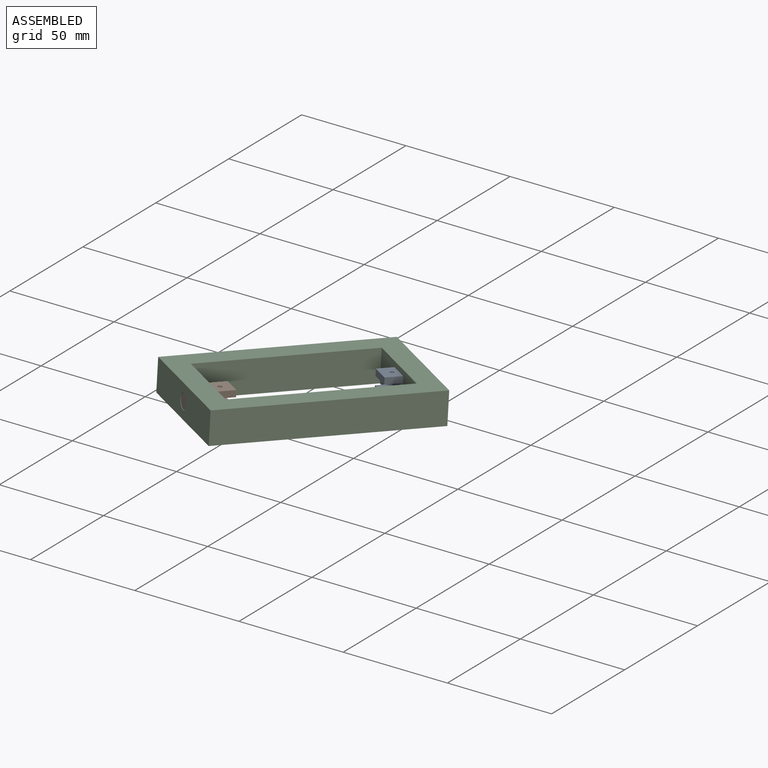
[diagram: assembled view]
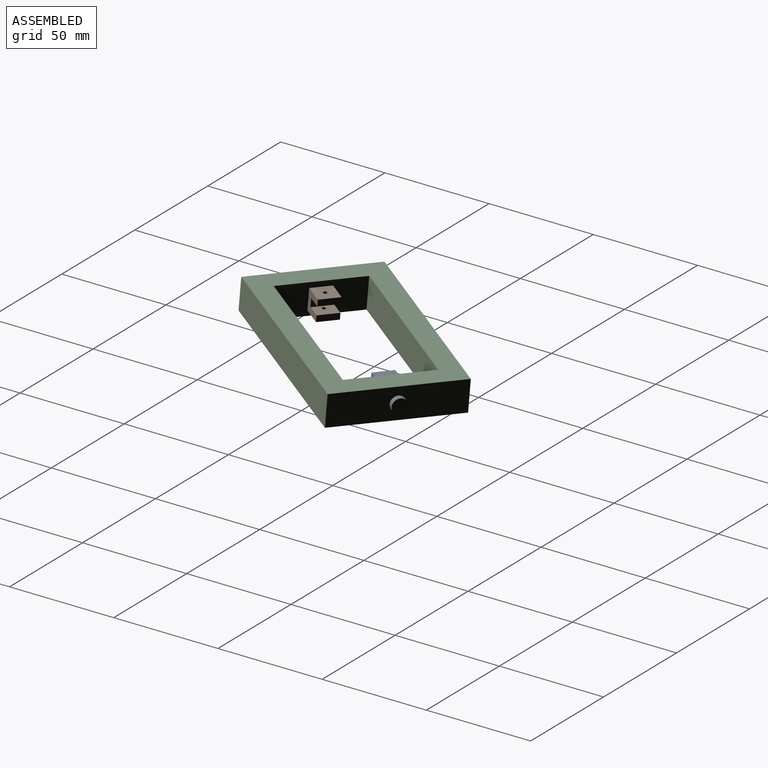
[diagram: assembled view, second angle]
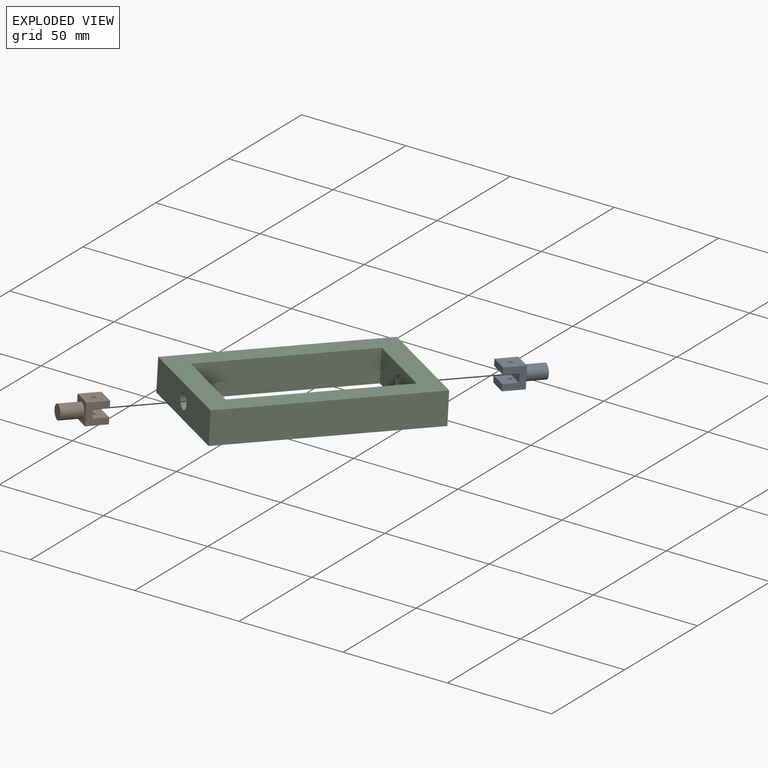
[diagram: exploded view]
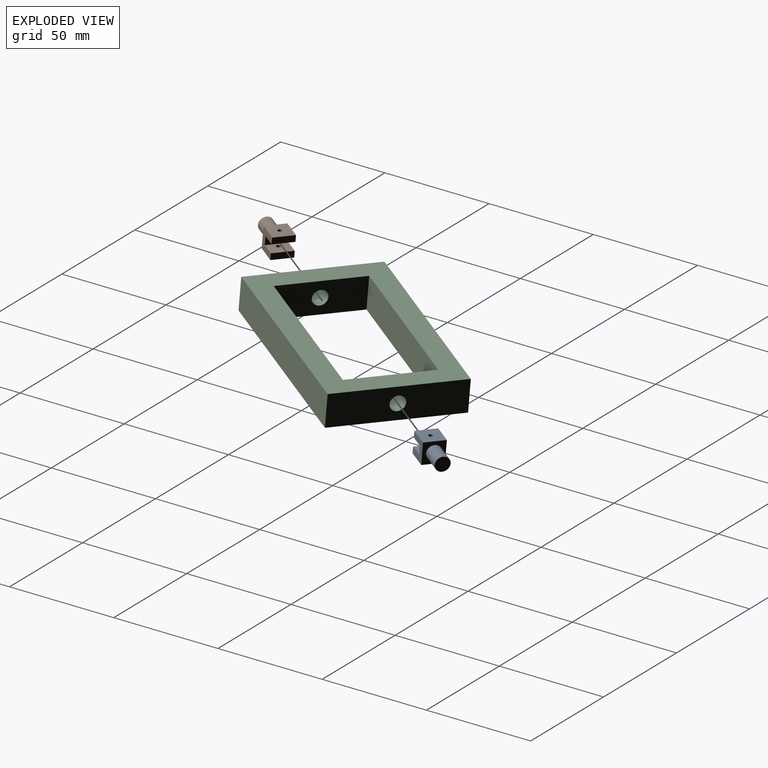
[diagram: exploded view, second angle]
ASSEMBLY  parts=3 mates=2
PART A: 14 faces, bbox 10x10x20 mm
  f0: plane 10x3mm, normal (0,0,-1), area 30mm2, adj f1,f2,f4,f8
  f1: plane 10x10mm, normal (0,1,0), area 72mm2, adj f0,f3,f4,f5,f6,f7,f8,f9
  f2: plane 10x10mm, normal (0,-1,0), area 72mm2, adj f0,f3,f4,f5,f6,f7,f8,f9
  f3: plane 10x10mm, normal (-1,0,0), area 96.9mm2, adj f1,f2,f5,f6,f13
  f4: plane 10x10mm, normal (1,0,0), area 96.9mm2, adj f0,f1,f2,f5,f12
  f5: plane 10x10mm, normal (0,0,1), area 64.7mm2, adj f1,f2,f3,f4,f10
  f6: plane 10x3mm, normal (0,0,-1), area 30mm2, adj f1,f2,f3,f7
  f7: plane 10x7mm, normal (1,0,0), area 66.9mm2, adj f1,f2,f6,f9,f13
  f8: plane 10x7mm, normal (-1,0,0), area 66.9mm2, adj f0,f1,f2,f9,f12
  f9: plane 10x4mm, normal (0,0,-1), area 40mm2, adj f1,f2,f7,f8
  f10: cylinder r=3.35mm len=10mm, axis (0,0,-1), area 210.5mm2, adj f5,f11
  f11: plane 6.7x6.7mm, normal (0,0,1), area 35.3mm2, adj f10
  f12: cylinder r=1mm len=3mm, axis (-1,0,0), area 18.8mm2, adj f4,f8
  f13: cylinder r=1mm len=3mm, axis (-1,0,0), area 18.8mm2, adj f3,f7
PART B: same geometry as A
PART C: 12 faces, bbox 60x100x15 mm
  f0: plane 60x15mm, normal (0,1,0), area 861.5mm2, adj f1,f3,f4,f5,f11
  f1: plane 100x15mm, normal (-1,0,0), area 1500mm2, adj f0,f2,f4,f5
  f2: plane 60x15mm, normal (0,-1,0), area 861.5mm2, adj f1,f3,f4,f5,f10
  f3: plane 100x15mm, normal (1,0,0), area 1500mm2, adj f0,f2,f4,f5
  f4: plane 100x60mm, normal (0,0,1), area 2800mm2, adj f0,f1,f2,f3,f6,f7,f8,f9
  f5: plane 100x60mm, normal (0,0,-1), area 2800mm2, adj f0,f1,f2,f3,f6,f7,f8,f9
  f6: plane 40x15mm, normal (0,-1,0), area 561.5mm2, adj f4,f5,f7,f9,f11
  f7: plane 80x15mm, normal (1,0,0), area 1200mm2, adj f4,f5,f6,f8
  f8: plane 40x15mm, normal (0,1,0), area 561.5mm2, adj f4,f5,f7,f9,f10
  f9: plane 80x15mm, normal (-1,0,0), area 1200mm2, adj f4,f5,f6,f8
  f10: cylinder r=3.5mm len=10mm, axis (0,-1,0), area 219.9mm2, adj f2,f8
  f11: cylinder r=3.5mm len=10mm, axis (0,-1,0), area 219.9mm2, adj f0,f6
PLACE A rot(axis=(-0.45,0.81,0.38),104.5deg) t=(-59.93,-68.04,47.79)mm
PLACE B rot(axis=(0.39,-0.8,0.46),100.3deg) t=(-95.53,-118.7,52.22)mm
PLACE C rot(axis=(-0.14,-0.04,-0.99),35.3deg) t=(-78.39,-94.97,42.62)mm
MATE slider B.f10 <-> C.f10  axis (0.57,0.82,-0.07) through (-104.14,-130.94,53.3)mm
MATE slider C.f10 <-> A.f10  axis (0.57,0.82,-0.07) through (-49.72,-53.51,46.52)mm
